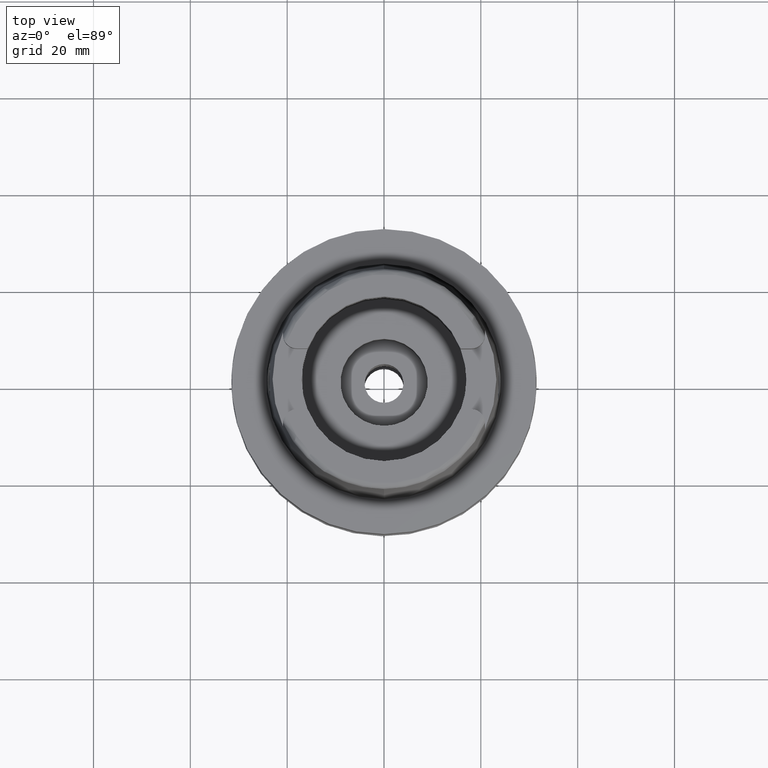
[diagram: clean part render]
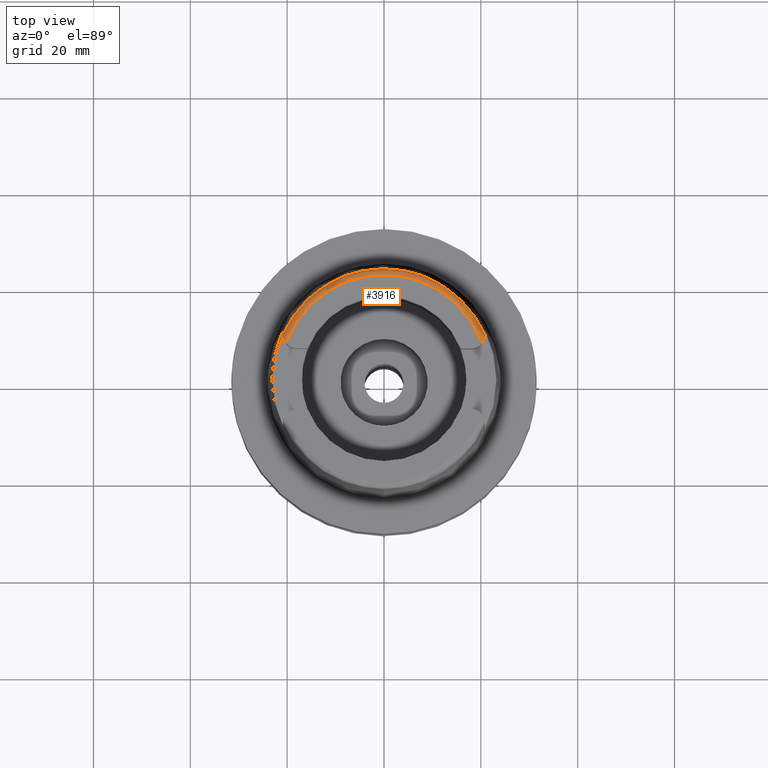
[diagram: same view with one face highlighted and labeled with its STEP entity id]
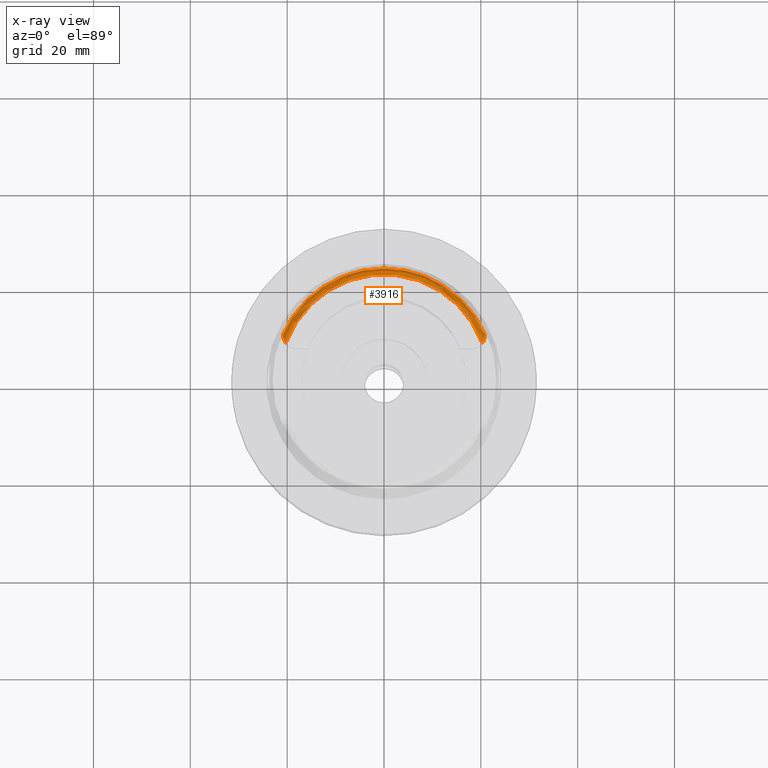
[diagram: x-ray of the same camera — body ghosted, the highlighted face saturated]
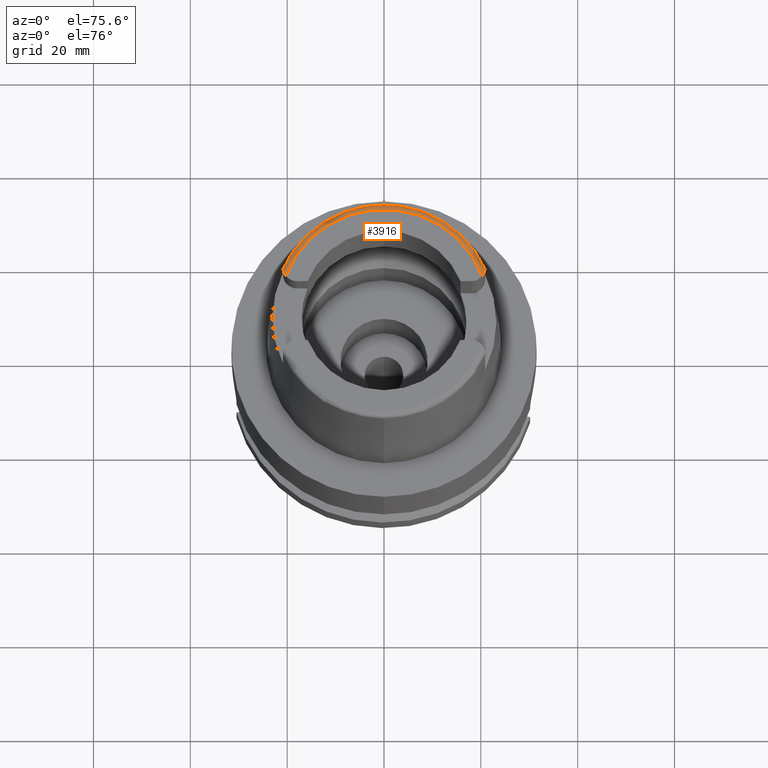
[diagram: same view with one face highlighted and labeled with its STEP entity id]
A machine part, top view. The second image highlights one B-rep face of the part: STEP entity #3916.
The next image is the same camera in x-ray: the body ghosted, the highlighted face saturated — about 0% of this face is hidden behind the body in this view.
A second angle (auxiliary view) of the same face is appended — the face is thin or edge-on in the first view.
In plain terms, the highlighted toroidal blend (fillet) surface has major radius 21.5735 mm and minor (blend) radius 1.2 mm.
Its self-contained STEP definition (entity closure, byte-faithful):
#23 = CARTESIAN_POINT ( 'NONE',  ( -20.62685938275095410, 7.991715480935863702, 31.86794433491584755 ) ) ;
#40 = VERTEX_POINT ( 'NONE', #3411 ) ;
#56 = CARTESIAN_POINT ( 'NONE',  ( -20.80906431131131740, 8.560289116885826388, 31.56163337062858787 ) ) ;
#60 = CARTESIAN_POINT ( 'NONE',  ( -20.86974110885000044, 9.111383541376000039, 30.85992743118999826 ) ) ;
#112 = CARTESIAN_POINT ( 'NONE',  ( -20.86956584230325262, 9.098314506590313044, 30.96771810373593325 ) ) ;
#159 = CARTESIAN_POINT ( 'NONE',  ( 20.86965348860098146, 9.104850457276683073, 30.91381361571527364 ) ) ;
#187 = CARTESIAN_POINT ( 'NONE',  ( 20.67731204528447719, 8.113577345967213361, 31.81637367765639723 ) ) ;
#342 = CARTESIAN_POINT ( 'NONE',  ( 0.0000000000000000000, 0.0000000000000000000, 30.85992712280000205 ) ) ;
#469 = FACE_OUTER_BOUND ( 'NONE', #1223, .T. ) ;
#483 = CARTESIAN_POINT ( 'NONE',  ( -20.72465822205102626, 8.245900721435685199, 31.75189284294917869 ) ) ;
#518 = CARTESIAN_POINT ( 'NONE',  ( -20.79974120392021675, 8.517357222466378275, 31.59103296296104801 ) ) ;
#534 = AXIS2_PLACEMENT_3D ( 'NONE', #867, #816, #2513 ) ;
#554 = EDGE_CURVE ( 'NONE', #2955, #4181, #4276, .T. ) ;
#588 = CARTESIAN_POINT ( 'NONE',  ( 20.83373208721711123, 8.694051341214025896, 31.46137546401953955 ) ) ;
#642 = CARTESIAN_POINT ( 'NONE',  ( 20.75714388859360682, 8.351561846182956828, 31.69382279130203273 ) ) ;
#704 = CARTESIAN_POINT ( 'NONE',  ( 20.26871835884000106, 7.388795116668999796, 32.00000000000000000 ) ) ;
#756 = CARTESIAN_POINT ( 'NONE',  ( 20.66142524371834810, 8.073853320300901970, 31.83379834639296746 ) ) ;
#816 = DIRECTION ( 'NONE',  ( 0.0000000000000000000, 0.0000000000000000000, -1.000000000000000000 ) ) ;
#867 = CARTESIAN_POINT ( 'NONE',  ( 0.0000000000000000000, 0.0000000000000000000, 30.80000000000000071 ) ) ;
#894 = ORIENTED_EDGE ( 'NONE', *, *, #4891, .F. ) ;
#908 = CARTESIAN_POINT ( 'NONE',  ( -20.86273119933111886, 8.944428671269321285, 31.21652229724185901 ) ) ;
#974 = CARTESIAN_POINT ( 'NONE',  ( 0.0000000000000000000, 0.0000000000000000000, 30.85992712280000205 ) ) ;
#1007 = CARTESIAN_POINT ( 'NONE',  ( 20.86946552070481431, 9.089413014978308780, 30.96815283879429259 ) ) ;
#1144 = CARTESIAN_POINT ( 'NONE',  ( 20.78413735046766675, 8.451637971348290534, 31.63373822393387158 ) ) ;
#1223 = EDGE_LOOP ( 'NONE', ( #4764, #3780, #4826, #894, #5203 ) ) ;
#1300 = CARTESIAN_POINT ( 'NONE',  ( -20.86085675880278956, 8.919186162354858283, 31.24702041161537025 ) ) ;
#1326 = DIRECTION ( 'NONE',  ( 0.0009289215035771249650, 0.9999995685523269673, 0.0000000000000000000 ) ) ;
#1387 = CARTESIAN_POINT ( 'NONE',  ( -20.79476147071148162, 8.495610096659211408, 31.60546190847967551 ) ) ;
#1417 = CARTESIAN_POINT ( 'NONE',  ( -20.74987918105144757, 8.326828608355970829, 31.70785571094571154 ) ) ;
#1433 = CARTESIAN_POINT ( 'NONE',  ( 20.85688773914122507, 8.868785245794152061, 31.30497946126142139 ) ) ;
#1462 = CARTESIAN_POINT ( 'NONE',  ( 20.80009538552658199, 8.517689831169743542, 31.59126261850819262 ) ) ;
#1542 = CARTESIAN_POINT ( 'NONE',  ( 20.77564717233741121, 8.418202778377839479, 31.65457250289766833 ) ) ;
#1745 = CARTESIAN_POINT ( 'NONE',  ( -20.66197458834632883, 8.073776170315536405, 31.83446673176355901 ) ) ;
#1819 = CARTESIAN_POINT ( 'NONE',  ( 20.86641159902597664, 9.005318964216565192, 31.13308933332232442 ) ) ;
#1866 = CARTESIAN_POINT ( 'NONE',  ( 20.82150431518939726, 8.623278314665073552, 31.51616568947568453 ) ) ;
#1931 = AXIS2_PLACEMENT_3D ( 'NONE', #974, #4844, #4399 ) ;
#2009 = CARTESIAN_POINT ( 'NONE',  ( 20.41273349744525589, 7.575127748033222197, 32.00000000000002132 ) ) ;
#2171 = CARTESIAN_POINT ( 'NONE',  ( -20.61397145669931774, 7.962808260670322547, 31.87918311492301271 ) ) ;
#2191 = DIRECTION ( 'NONE',  ( 0.0000000000000000000, 0.0000000000000000000, -1.000000000000000000 ) ) ;
#2198 = CARTESIAN_POINT ( 'NONE',  ( -20.76680225814233438, 8.384443363601251420, 31.67516898024427263 ) ) ;
#2233 = EDGE_CURVE ( 'NONE', #40, #3376, #5194, .T. ) ;
#2247 = CARTESIAN_POINT ( 'NONE',  ( 20.86788997731567008, 9.038529969980315215, 31.07784713363579954 ) ) ;
#2280 = CARTESIAN_POINT ( 'NONE',  ( -20.86948296066429975, 9.049582291661215194, 31.07730168493259626 ) ) ;
#2285 = AXIS2_PLACEMENT_3D ( 'NONE', #342, #2418, #5466 ) ;
#2290 = CIRCLE ( 'NONE', #2285, 22.77198729362000051 ) ;
#2301 = CARTESIAN_POINT ( 'NONE',  ( 20.83085228156526014, 8.676399758755716007, 31.47544068516855376 ) ) ;
#2418 = DIRECTION ( 'NONE',  ( 0.0000000000000000000, 0.0000000000000000000, -1.000000000000000000 ) ) ;
#2456 = CARTESIAN_POINT ( 'NONE',  ( 20.53972203453876944, 7.786907695969945920, 31.95204369811499490 ) ) ;
#2500 = CARTESIAN_POINT ( 'NONE',  ( 20.26871835884000106, 7.388795116668999796, 32.00000000000000000 ) ) ;
#2513 = DIRECTION ( 'NONE',  ( -0.0009289215035770252184, -0.9999995685523270783, 0.0000000000000000000 ) ) ;
#2605 = CARTESIAN_POINT ( 'NONE',  ( -20.86974110885000044, 9.111383541376000039, 30.85992743118999826 ) ) ;
#2688 = CARTESIAN_POINT ( 'NONE',  ( -20.40845013405850850, 7.581403253210107884, 31.98801196799237090 ) ) ;
#2759 = AXIS2_PLACEMENT_3D ( 'NONE', #4413, #2191, #1326 ) ;
#2765 = CARTESIAN_POINT ( 'NONE',  ( 20.76633982456274552, 8.384181851090851012, 31.67480149623792229 ) ) ;
#2939 = TOROIDAL_SURFACE ( 'NONE', #534, 21.57348458609000019, 1.199999999999999956 ) ;
#2955 = VERTEX_POINT ( 'NONE', #60 ) ;
#2959 = B_SPLINE_CURVE_WITH_KNOTS ( 'NONE', 3,
 ( #3890, #5271, #2688, #4339, #3124, #3918, #3997, #2171, #23, #4392, #1745, #3454, #483, #4836, #5235, #1417, #2198, #5179, #1387, #518, #56, #3035, #3003, #4807, #4417, #4752, #1300, #908, #2280, #112, #2605 ),
 .UNSPECIFIED., .F., .F.,
 ( 4, 2, 2, 1, 2, 2, 1, 1, 2, 2, 2, 2, 2, 2, 2, 2, 4 ),
 ( 0.0000000000000000000, 0.1250000000000044686, 0.1875000000000073830, 0.2187500000000079103, 0.2343750000000081601, 0.2500000000000083822, 0.3125000000000069389, 0.3437500000000062172, 0.3593750000000074385, 0.3750000000000086597, 0.4375000000000049405, 0.4687500000000034972, 0.5000000000000019984, 0.6250000000000039968, 0.6875000000000075495, 0.7500000000000069944, 1.000000000000000000 ),
 .UNSPECIFIED. ) ;
#3003 = CARTESIAN_POINT ( 'NONE',  ( -20.83225160663689479, 8.678765986896360474, 31.47568983574613455 ) ) ;
#3035 = CARTESIAN_POINT ( 'NONE',  ( -20.81375514718187603, 8.583267832726635405, 31.54535407400512526 ) ) ;
#3081 = CARTESIAN_POINT ( 'NONE',  ( 20.86838899089606514, 9.052917900677901031, 31.05033890586846823 ) ) ;
#3124 = CARTESIAN_POINT ( 'NONE',  ( -20.53149596903016771, 7.793868129322098603, 31.93706283195989926 ) ) ;
#3302 = CARTESIAN_POINT ( 'NONE',  ( 20.73778344123983430, 8.285646640270790897, 31.73122238304705434 ) ) ;
#3376 = VERTEX_POINT ( 'NONE', #2500 ) ;
#3411 = CARTESIAN_POINT ( 'NONE',  ( -20.26871835884000106, 7.388795116669998997, 32.00000000000000000 ) ) ;
#3454 = CARTESIAN_POINT ( 'NONE',  ( -20.69304165246506599, 8.153262627431855591, 31.79885591226711128 ) ) ;
#3502 = CARTESIAN_POINT ( 'NONE',  ( 20.86974092012000170, 9.111384045666000020, 30.85992712280000205 ) ) ;
#3527 = CARTESIAN_POINT ( 'NONE',  ( 20.86124535728179197, 8.921286340058426134, 31.24716912732474583 ) ) ;
#3587 = CARTESIAN_POINT ( 'NONE',  ( 20.80937136258553366, 8.560631861409497390, 31.56186948489363786 ) ) ;
#3780 = ORIENTED_EDGE ( 'NONE', *, *, #2233, .T. ) ;
#3824 = VERTEX_POINT ( 'NONE', #4320 ) ;
#3890 = CARTESIAN_POINT ( 'NONE',  ( -20.26871835884000106, 7.388795116669998997, 32.00000000000000000 ) ) ;
#3916 = ADVANCED_FACE ( 'NONE', ( #469 ), #2939, .T. ) ;
#3918 = CARTESIAN_POINT ( 'NONE',  ( -20.57376935023014042, 7.877400378112754176, 31.91008975994270003 ) ) ;
#3997 = CARTESIAN_POINT ( 'NONE',  ( -20.59432731983191189, 7.919708004801828238, 31.89547934593339207 ) ) ;
#4010 = CARTESIAN_POINT ( 'NONE',  ( 20.82456604203508732, 8.640123321260203326, 31.50348504694762397 ) ) ;
#4181 = VERTEX_POINT ( 'NONE', #4203 ) ;
#4203 = CARTESIAN_POINT ( 'NONE',  ( 0.0000000000000000000, 22.77198729362000051, 30.85992712280000205 ) ) ;
#4276 = CIRCLE ( 'NONE', #1931, 22.77198729362000407 ) ;
#4320 = CARTESIAN_POINT ( 'NONE',  ( 20.86974092012000170, 9.111384045666000020, 30.85992712280000205 ) ) ;
#4339 = CARTESIAN_POINT ( 'NONE',  ( -20.50177057624748400, 7.739624952879826658, 31.95204787196943030 ) ) ;
#4392 = CARTESIAN_POINT ( 'NONE',  ( -20.63379700027316588, 8.007658526482373418, 31.86156283694451830 ) ) ;
#4399 = DIRECTION ( 'NONE',  ( -0.9164655183265837390, 0.4001136759951928745, 0.0000000000000000000 ) ) ;
#4407 = CARTESIAN_POINT ( 'NONE',  ( 20.84166681763474926, 8.745522788690722749, 31.41905067979413602 ) ) ;
#4413 = CARTESIAN_POINT ( 'NONE',  ( 0.0000000000000000000, 0.0000000000000000000, 32.00000000000000000 ) ) ;
#4417 = CARTESIAN_POINT ( 'NONE',  ( -20.85326065380337113, 8.838438917789844140, 31.33357645658475121 ) ) ;
#4431 = CARTESIAN_POINT ( 'NONE',  ( 20.86550023188395642, 8.987555004926640834, 31.15942066019263734 ) ) ;
#4548 = CARTESIAN_POINT ( 'NONE',  ( 20.65060654474874369, 8.047377071232782342, 31.84515760830400311 ) ) ;
#4604 = CARTESIAN_POINT ( 'NONE',  ( 20.64567826287699859, 8.035537927742957720, 31.85013655660937104 ) ) ;
#4700 = EDGE_CURVE ( 'NONE', #40, #2955, #2959, .T. ) ;
#4752 = CARTESIAN_POINT ( 'NONE',  ( -20.85615579961856270, 8.866725416733183707, 31.30484047920510093 ) ) ;
#4764 = ORIENTED_EDGE ( 'NONE', *, *, #4700, .F. ) ;
#4807 = CARTESIAN_POINT ( 'NONE',  ( -20.84238958798445296, 8.747506327224840561, 31.41926221947809950 ) ) ;
#4823 = CARTESIAN_POINT ( 'NONE',  ( 20.84601860720625410, 8.777858256846943874, 31.39066199593934670 ) ) ;
#4826 = ORIENTED_EDGE ( 'NONE', *, *, #5263, .F. ) ;
#4836 = CARTESIAN_POINT ( 'NONE',  ( -20.73723731971744400, 8.285547429774268835, 31.73060500326176125 ) ) ;
#4844 = DIRECTION ( 'NONE',  ( 0.0000000000000000000, 0.0000000000000000000, -1.000000000000000000 ) ) ;
#4891 = EDGE_CURVE ( 'NONE', #4181, #3824, #2290, .T. ) ;
#4903 = CARTESIAN_POINT ( 'NONE',  ( 20.71201501375825060, 8.206289698143446998, 31.77301568618080196 ) ) ;
#5179 = CARTESIAN_POINT ( 'NONE',  ( -20.77880201574727081, 8.429558795117880976, 31.64793619309270412 ) ) ;
#5194 = CIRCLE ( 'NONE', #2759, 21.57348458609000375 ) ;
#5203 = ORIENTED_EDGE ( 'NONE', *, *, #554, .F. ) ;
#5235 = CARTESIAN_POINT ( 'NONE',  ( -20.74540999992882817, 8.311962489317838987, 31.71615515236354099 ) ) ;
#5250 = B_SPLINE_CURVE_WITH_KNOTS ( 'NONE', 3,
 ( #3502, #159, #1007, #3081, #2247, #1819, #4431, #3527, #1433, #4823, #4407, #588, #2301, #4010, #1866, #3587, #1462, #1144, #1542, #2765, #5365, #642, #3302, #4903, #187, #756, #4548, #4604, #2456, #2009, #704 ),
 .UNSPECIFIED., .F., .F.,
 ( 4, 2, 2, 2, 2, 2, 2, 2, 2, 1, 2, 2, 1, 1, 2, 2, 4 ),
 ( 0.0000000000000000000, 0.1250000000000157374, 0.1875000000000235645, 0.2500000000000314193, 0.3750000000000468514, 0.4375000000000538458, 0.4687500000000573430, 0.5000000000000608402, 0.5625000000000671685, 0.5937500000000677236, 0.6093750000000663913, 0.6250000000000650591, 0.6875000000000567324, 0.7187500000000527356, 0.7343750000000501821, 0.7500000000000475175, 1.000000000000000000 ),
 .UNSPECIFIED. ) ;
#5263 = EDGE_CURVE ( 'NONE', #3824, #3376, #5250, .T. ) ;
#5271 = CARTESIAN_POINT ( 'NONE',  ( -20.34071458525894016, 7.481946756465474913, 31.99999999999999289 ) ) ;
#5365 = CARTESIAN_POINT ( 'NONE',  ( 20.75994766918435275, 8.361374506732156320, 31.68815298388173574 ) ) ;
#5466 = DIRECTION ( 'NONE',  ( 0.0000000000000000000, 1.000000000000000000, 0.0000000000000000000 ) ) ;